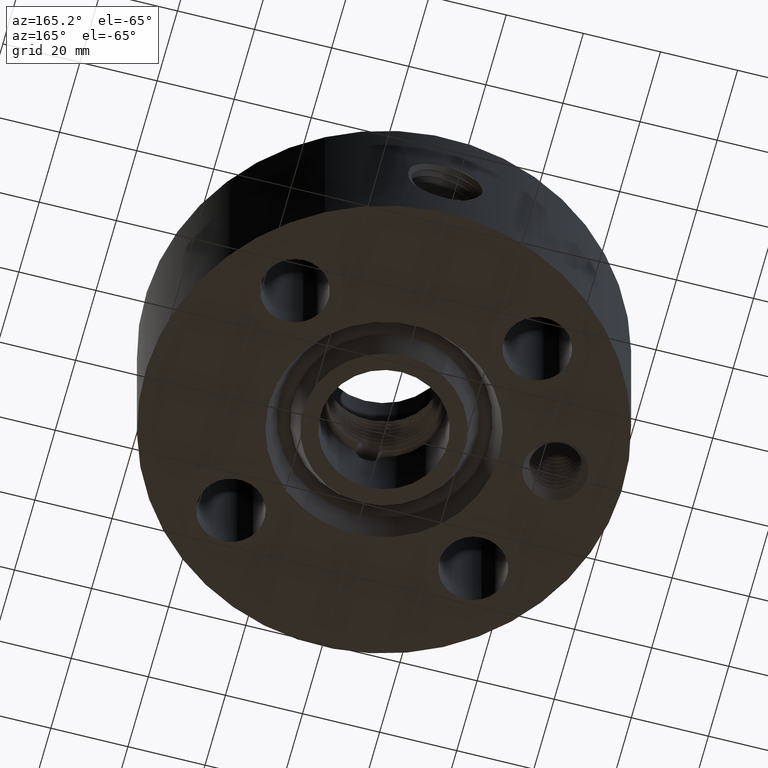
[diagram: clean part render]
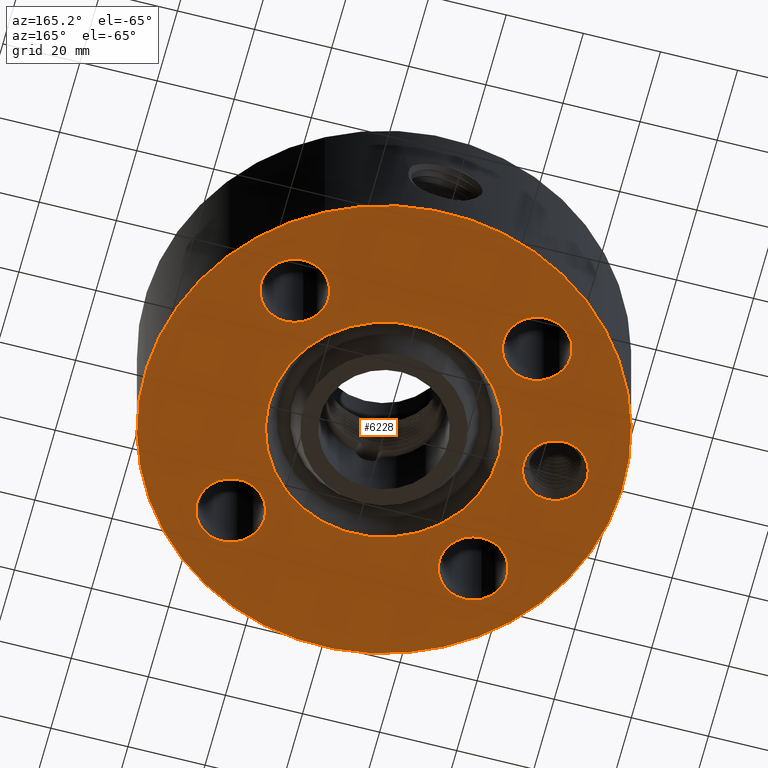
[diagram: same view with one face highlighted and labeled with its STEP entity id]
A machine part, auxiliary view. The second image highlights one B-rep face of the part: STEP entity #6228.
In plain terms, the highlighted planar face has unit normal (0, 0, -1).
Its self-contained STEP definition (entity closure, byte-faithful):
#1320=AXIS2_PLACEMENT_3D('Plane Axis2P3D',#1317,#1318,#1319) ;
#5367=AXIS2_PLACEMENT_3D('Circle Axis2P3D',#5365,#5366,$) ;
#5393=AXIS2_PLACEMENT_3D('Circle Axis2P3D',#5391,#5392,$) ;
#6118=AXIS2_PLACEMENT_3D('Circle Axis2P3D',#6116,#6117,$) ;
#6127=AXIS2_PLACEMENT_3D('Circle Axis2P3D',#6125,#6126,$) ;
#6136=AXIS2_PLACEMENT_3D('Circle Axis2P3D',#6134,#6135,$) ;
#6145=AXIS2_PLACEMENT_3D('Circle Axis2P3D',#6143,#6144,$) ;
#6154=AXIS2_PLACEMENT_3D('Circle Axis2P3D',#6152,#6153,$) ;
#6163=AXIS2_PLACEMENT_3D('Circle Axis2P3D',#6161,#6162,$) ;
#6172=AXIS2_PLACEMENT_3D('Circle Axis2P3D',#6170,#6171,$) ;
#6181=AXIS2_PLACEMENT_3D('Circle Axis2P3D',#6179,#6180,$) ;
#6190=AXIS2_PLACEMENT_3D('Circle Axis2P3D',#6188,#6189,$) ;
#6199=AXIS2_PLACEMENT_3D('Circle Axis2P3D',#6197,#6198,$) ;
#6208=AXIS2_PLACEMENT_3D('Circle Axis2P3D',#6206,#6207,$) ;
#6217=AXIS2_PLACEMENT_3D('Circle Axis2P3D',#6215,#6216,$) ;
#1317=CARTESIAN_POINT('Axis2P3D Location',(0.,0.,0.)) ;
#5365=CARTESIAN_POINT('Axis2P3D Location',(0.,0.,0.)) ;
#5369=CARTESIAN_POINT('Vertex',(-0.561886731246,1.02852676254,0.)) ;
#5371=CARTESIAN_POINT('Vertex',(0.561886731246,-1.02852676254,0.)) ;
#5391=CARTESIAN_POINT('Axis2P3D Location',(0.,0.,0.)) ;
#6116=CARTESIAN_POINT('Axis2P3D Location',(0.,0.,0.)) ;
#6120=CARTESIAN_POINT('Vertex',(1.1697983142,2.14130145102,0.)) ;
#6122=CARTESIAN_POINT('Vertex',(-1.1697983142,-2.14130145102,0.)) ;
#6125=CARTESIAN_POINT('Axis2P3D Location',(0.,0.,0.)) ;
#6134=CARTESIAN_POINT('Axis2P3D Location',(-1.75000000001,5.0367647224E-017,0.)) ;
#6138=CARTESIAN_POINT('Vertex',(-1.46423717829,-0.156112941009,0.)) ;
#6140=CARTESIAN_POINT('Vertex',(-2.03576282172,0.156112941009,0.)) ;
#6143=CARTESIAN_POINT('Axis2P3D Location',(-1.75000000001,5.0367647224E-017,0.)) ;
#6152=CARTESIAN_POINT('Axis2P3D Location',(1.23743686708,-1.23743686708,0.)) ;
#6156=CARTESIAN_POINT('Vertex',(1.54020285093,-1.4028386779,0.)) ;
#6158=CARTESIAN_POINT('Vertex',(0.934670883228,-1.07203505626,0.)) ;
#6161=CARTESIAN_POINT('Axis2P3D Location',(1.23743686708,-1.23743686708,0.)) ;
#6170=CARTESIAN_POINT('Axis2P3D Location',(-1.23743686708,-1.23743686708,0.)) ;
#6174=CARTESIAN_POINT('Vertex',(-1.07203505626,-0.934670883228,0.)) ;
#6176=CARTESIAN_POINT('Vertex',(-1.4028386779,-1.54020285093,0.)) ;
#6179=CARTESIAN_POINT('Axis2P3D Location',(-1.23743686708,-1.23743686708,0.)) ;
#6188=CARTESIAN_POINT('Axis2P3D Location',(-1.23743686708,1.23743686708,0.)) ;
#6192=CARTESIAN_POINT('Vertex',(-0.934670883228,1.07203505626,0.)) ;
#6194=CARTESIAN_POINT('Vertex',(-1.54020285093,1.4028386779,0.)) ;
#6197=CARTESIAN_POINT('Axis2P3D Location',(-1.23743686708,1.23743686708,0.)) ;
#6206=CARTESIAN_POINT('Axis2P3D Location',(1.23743686708,1.23743686708,0.)) ;
#6210=CARTESIAN_POINT('Vertex',(1.07203505626,0.934670883228,0.)) ;
#6212=CARTESIAN_POINT('Vertex',(1.4028386779,1.54020285093,0.)) ;
#6215=CARTESIAN_POINT('Axis2P3D Location',(1.23743686708,1.23743686708,0.)) ;
#1318=DIRECTION('Axis2P3D Direction',(0.,0.,-0.0393700787402)) ;
#1319=DIRECTION('Axis2P3D XDirection',(0.0393700787402,0.,0.)) ;
#5366=DIRECTION('Axis2P3D Direction',(0.,0.,-0.0393700787402)) ;
#5392=DIRECTION('Axis2P3D Direction',(0.,0.,-0.0393700787402)) ;
#6117=DIRECTION('Axis2P3D Direction',(0.,0.,-0.0393700787402)) ;
#6126=DIRECTION('Axis2P3D Direction',(0.,0.,-0.0393700787402)) ;
#6135=DIRECTION('Axis2P3D Direction',(0.,0.,-0.0393700787402)) ;
#6144=DIRECTION('Axis2P3D Direction',(0.,0.,-0.0393700787402)) ;
#6153=DIRECTION('Axis2P3D Direction',(0.,0.,-0.0393700787402)) ;
#6162=DIRECTION('Axis2P3D Direction',(0.,0.,-0.0393700787402)) ;
#6171=DIRECTION('Axis2P3D Direction',(0.,0.,-0.0393700787402)) ;
#6180=DIRECTION('Axis2P3D Direction',(0.,0.,-0.0393700787402)) ;
#6189=DIRECTION('Axis2P3D Direction',(0.,0.,-0.0393700787402)) ;
#6198=DIRECTION('Axis2P3D Direction',(0.,0.,-0.0393700787402)) ;
#6207=DIRECTION('Axis2P3D Direction',(0.,0.,-0.0393700787402)) ;
#6216=DIRECTION('Axis2P3D Direction',(0.,0.,-0.0393700787402)) ;
#6131=ORIENTED_EDGE('',*,*,#6124,.T.) ;
#6132=ORIENTED_EDGE('',*,*,#6129,.T.) ;
#6149=ORIENTED_EDGE('',*,*,#6142,.F.) ;
#6150=ORIENTED_EDGE('',*,*,#6147,.F.) ;
#6167=ORIENTED_EDGE('',*,*,#6160,.F.) ;
#6168=ORIENTED_EDGE('',*,*,#6165,.F.) ;
#6185=ORIENTED_EDGE('',*,*,#6178,.F.) ;
#6186=ORIENTED_EDGE('',*,*,#6183,.F.) ;
#6203=ORIENTED_EDGE('',*,*,#6196,.F.) ;
#6204=ORIENTED_EDGE('',*,*,#6201,.F.) ;
#6221=ORIENTED_EDGE('',*,*,#6214,.F.) ;
#6222=ORIENTED_EDGE('',*,*,#6219,.F.) ;
#6225=ORIENTED_EDGE('',*,*,#5395,.F.) ;
#6226=ORIENTED_EDGE('',*,*,#5373,.F.) ;
#6151=FACE_BOUND('',#6148,.T.) ;
#6169=FACE_BOUND('',#6166,.T.) ;
#6187=FACE_BOUND('',#6184,.T.) ;
#6205=FACE_BOUND('',#6202,.T.) ;
#6223=FACE_BOUND('',#6220,.T.) ;
#6227=FACE_BOUND('',#6224,.T.) ;
#6228=ADVANCED_FACE('PartBody',(#6133,#6151,#6169,#6187,#6205,#6223,#6227),#1321,.T.) ;
#5368=CIRCLE('generated circle',#5367,1.172) ;
#5394=CIRCLE('generated circle',#5393,1.172) ;
#6119=CIRCLE('generated circle',#6118,2.44000000001) ;
#6128=CIRCLE('generated circle',#6127,2.44000000001) ;
#6137=CIRCLE('generated circle',#6136,0.325625000001) ;
#6146=CIRCLE('generated circle',#6145,0.325625000001) ;
#6155=CIRCLE('generated circle',#6154,0.345000000001) ;
#6164=CIRCLE('generated circle',#6163,0.345000000001) ;
#6173=CIRCLE('generated circle',#6172,0.345000000001) ;
#6182=CIRCLE('generated circle',#6181,0.345000000001) ;
#6191=CIRCLE('generated circle',#6190,0.345000000001) ;
#6200=CIRCLE('generated circle',#6199,0.345000000001) ;
#6209=CIRCLE('generated circle',#6208,0.345000000001) ;
#6218=CIRCLE('generated circle',#6217,0.345000000001) ;
#5373=EDGE_CURVE('',#5370,#5372,#5368,.T.) ;
#5395=EDGE_CURVE('',#5372,#5370,#5394,.T.) ;
#6124=EDGE_CURVE('',#6121,#6123,#6119,.T.) ;
#6129=EDGE_CURVE('',#6123,#6121,#6128,.T.) ;
#6142=EDGE_CURVE('',#6139,#6141,#6137,.T.) ;
#6147=EDGE_CURVE('',#6141,#6139,#6146,.T.) ;
#6160=EDGE_CURVE('',#6157,#6159,#6155,.T.) ;
#6165=EDGE_CURVE('',#6159,#6157,#6164,.T.) ;
#6178=EDGE_CURVE('',#6175,#6177,#6173,.T.) ;
#6183=EDGE_CURVE('',#6177,#6175,#6182,.T.) ;
#6196=EDGE_CURVE('',#6193,#6195,#6191,.T.) ;
#6201=EDGE_CURVE('',#6195,#6193,#6200,.T.) ;
#6214=EDGE_CURVE('',#6211,#6213,#6209,.T.) ;
#6219=EDGE_CURVE('',#6213,#6211,#6218,.T.) ;
#6130=EDGE_LOOP('',(#6131,#6132)) ;
#6148=EDGE_LOOP('',(#6149,#6150)) ;
#6166=EDGE_LOOP('',(#6167,#6168)) ;
#6184=EDGE_LOOP('',(#6185,#6186)) ;
#6202=EDGE_LOOP('',(#6203,#6204)) ;
#6220=EDGE_LOOP('',(#6221,#6222)) ;
#6224=EDGE_LOOP('',(#6225,#6226)) ;
#6133=FACE_OUTER_BOUND('',#6130,.T.) ;
#1321=PLANE('',#1320) ;
#5370=VERTEX_POINT('',#5369) ;
#5372=VERTEX_POINT('',#5371) ;
#6121=VERTEX_POINT('',#6120) ;
#6123=VERTEX_POINT('',#6122) ;
#6139=VERTEX_POINT('',#6138) ;
#6141=VERTEX_POINT('',#6140) ;
#6157=VERTEX_POINT('',#6156) ;
#6159=VERTEX_POINT('',#6158) ;
#6175=VERTEX_POINT('',#6174) ;
#6177=VERTEX_POINT('',#6176) ;
#6193=VERTEX_POINT('',#6192) ;
#6195=VERTEX_POINT('',#6194) ;
#6211=VERTEX_POINT('',#6210) ;
#6213=VERTEX_POINT('',#6212) ;